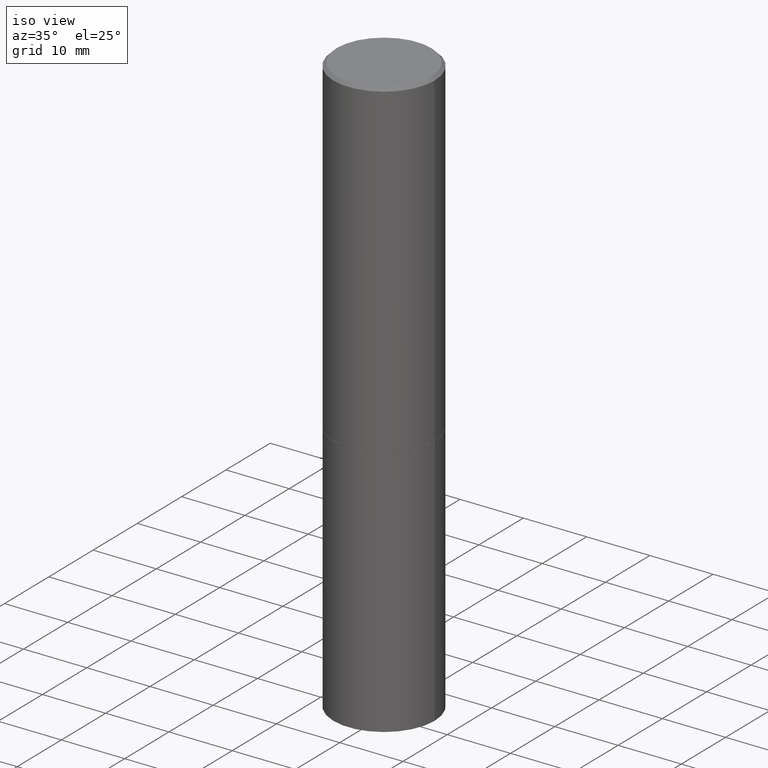
[diagram: clean part render]
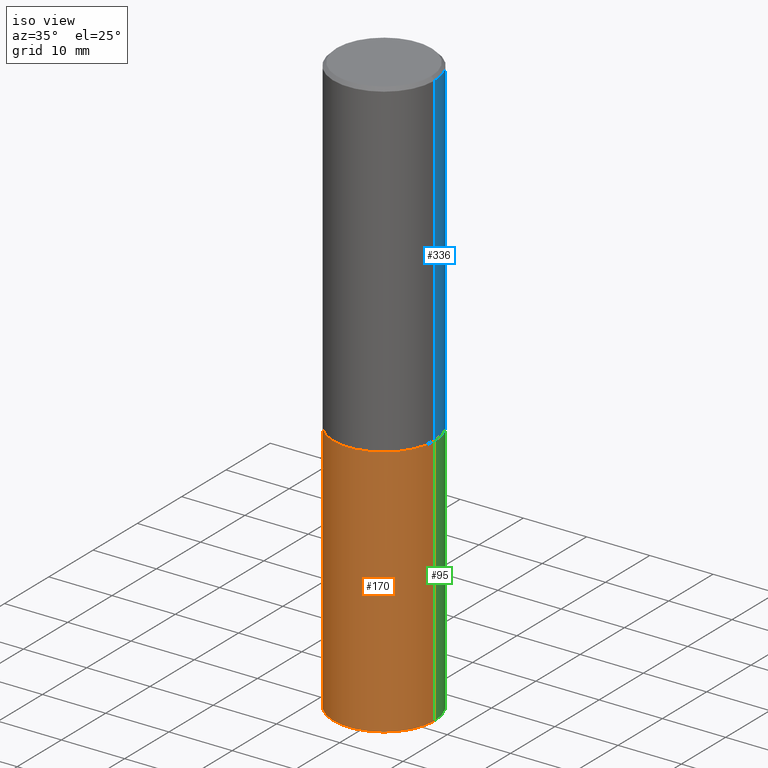
[diagram: same view with three faces highlighted in distinct colors, each labeled with its STEP entity id]
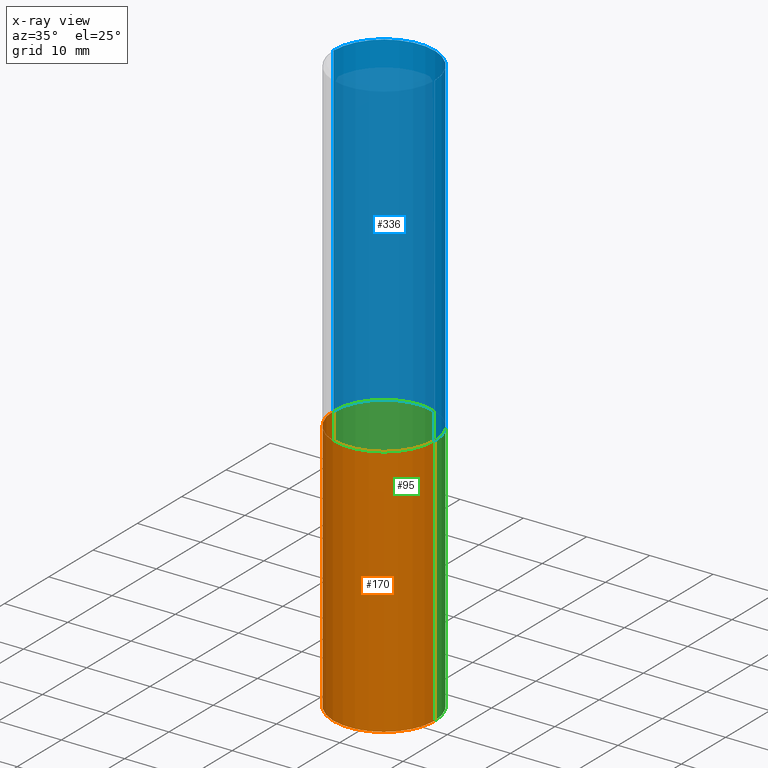
[diagram: x-ray of the same camera — body ghosted, the three highlighted faces saturated]
A machine part, iso view with three faces highlighted in distinct colors.
The next image is the same camera in x-ray (body ghosted, the three faces saturated) — at least one of them is partly hidden behind the body in this view.
Their STEP definitions:

[orange] entity #170 — the highlighted cylindrical surface (partial cylindrical patch) has radius 7.9997 mm, axis along (-0, 0, 1).
#8 = CYLINDRICAL_SURFACE ( 'NONE', #254, 0.3149500000000000077 ) ;
#9 = DIRECTION ( 'NONE',  ( 1.000000000000000000, -6.982962677686266711E-15, 4.876176775795936353E-29 ) ) ;
#17 = CARTESIAN_POINT ( 'NONE',  ( 0.3149500000000000077, -2.199284095337289871E-15, 1.535751875536930130E-29 ) ) ;
#21 = ORIENTED_EDGE ( 'NONE', *, *, #283, .T. ) ;
#24 = VECTOR ( 'NONE', #333, 39.37007874015748143 ) ;
#26 = ORIENTED_EDGE ( 'NONE', *, *, #251, .T. ) ;
#43 = VERTEX_POINT ( 'NONE', #271 ) ;
#55 = CIRCLE ( 'NONE', #203, 0.3149500000000000077 ) ;
#81 = VERTEX_POINT ( 'NONE', #321 ) ;
#96 = CARTESIAN_POINT ( 'NONE',  ( 0.3149500000000000077, -1.484542950462716186E-14, -3.621999999999999886 ) ) ;
#114 = DIRECTION ( 'NONE',  ( -2.445468806185136597E-29, 3.491481338843145583E-15, 1.000000000000000000 ) ) ;
#143 = DIRECTION ( 'NONE',  ( -2.445468806185136597E-29, 3.491481338843145583E-15, 1.000000000000000000 ) ) ;
#147 = VECTOR ( 'NONE', #257, 39.37007874015748143 ) ;
#159 = CIRCLE ( 'NONE', #294, 0.3149500000000000077 ) ;
#163 = CARTESIAN_POINT ( 'NONE',  ( 8.857488016002564476E-29, -1.264614540928987199E-14, -3.621999999999999886 ) ) ;
#170 = ADVANCED_FACE ( 'NONE', ( #241 ), #8, .T. ) ;
#172 = VERTEX_POINT ( 'NONE', #96 ) ;
#181 = EDGE_CURVE ( 'NONE', #43, #311, #214, .T. ) ;
#188 = DIRECTION ( 'NONE',  ( -2.445468806185136597E-29, 3.491481338843145583E-15, 1.000000000000000000 ) ) ;
#201 = EDGE_LOOP ( 'NONE', ( #202, #26, #21, #286 ) ) ;
#202 = ORIENTED_EDGE ( 'NONE', *, *, #181, .F. ) ;
#203 = AXIS2_PLACEMENT_3D ( 'NONE', #318, #114, #288 ) ;
#212 = CARTESIAN_POINT ( 'NONE',  ( 0.000000000000000000, 0.000000000000000000, 0.000000000000000000 ) ) ;
#214 = LINE ( 'NONE', #356, #24 ) ;
#241 = FACE_OUTER_BOUND ( 'NONE', #201, .T. ) ;
#251 = EDGE_CURVE ( 'NONE', #43, #172, #159, .T. ) ;
#252 = LINE ( 'NONE', #17, #147 ) ;
#254 = AXIS2_PLACEMENT_3D ( 'NONE', #212, #188, #9 ) ;
#257 = DIRECTION ( 'NONE',  ( -2.445468806185136877E-29, 3.491481338843145188E-15, 1.000000000000000000 ) ) ;
#271 = CARTESIAN_POINT ( 'NONE',  ( -0.3149500000000000077, -7.659098656808343322E-15, -3.621999999999999886 ) ) ;
#283 = EDGE_CURVE ( 'NONE', #172, #81, #252, .T. ) ;
#286 = ORIENTED_EDGE ( 'NONE', *, *, #344, .F. ) ;
#288 = DIRECTION ( 'NONE',  ( 1.000000000000000000, -6.982962677686269866E-15, 0.000000000000000000 ) ) ;
#294 = AXIS2_PLACEMENT_3D ( 'NONE', #163, #143, #330 ) ;
#311 = VERTEX_POINT ( 'NONE', #358 ) ;
#318 = CARTESIAN_POINT ( 'NONE',  ( 5.006363740022211120E-29, -7.147760596879686624E-15, -2.047199999999999687 ) ) ;
#321 = CARTESIAN_POINT ( 'NONE',  ( 0.3149500000000000077, -9.347044692216978073E-15, -2.047199999999999687 ) ) ;
#330 = DIRECTION ( 'NONE',  ( 1.000000000000000000, -6.982962677686263555E-15, 0.000000000000000000 ) ) ;
#333 = DIRECTION ( 'NONE',  ( -2.445468806185136877E-29, 3.491481338843145188E-15, 1.000000000000000000 ) ) ;
#344 = EDGE_CURVE ( 'NONE', #311, #81, #55, .T. ) ;
#356 = CARTESIAN_POINT ( 'NONE',  ( -0.3149500000000000077, 2.237854346276435590E-15, -1.549218606675782676E-29 ) ) ;
#358 = CARTESIAN_POINT ( 'NONE',  ( -0.3149500000000000077, -7.659098656808343322E-15, -2.047199999999999687 ) ) ;

[blue] entity #336 — the highlighted cylindrical surface (partial cylindrical patch) has radius 7.9997 mm, axis along (-0, 0, 1).
#19 = VERTEX_POINT ( 'NONE', #292 ) ;
#22 = CARTESIAN_POINT ( 'NONE',  ( 0.3149500000000000077, -9.343553210878133488E-15, -2.046199999999999797 ) ) ;
#45 = DIRECTION ( 'NONE',  ( 1.000000000000000000, -6.982962677686266711E-15, 0.000000000000000000 ) ) ;
#54 = ORIENTED_EDGE ( 'NONE', *, *, #298, .F. ) ;
#63 = EDGE_CURVE ( 'NONE', #135, #282, #236, .T. ) ;
#66 = ORIENTED_EDGE ( 'NONE', *, *, #63, .F. ) ;
#68 = DIRECTION ( 'NONE',  ( 1.000000000000000000, -6.982962677686266711E-15, 0.000000000000000000 ) ) ;
#77 = CARTESIAN_POINT ( 'NONE',  ( -0.3149499999999997302, 2.129454468560424601E-15, -0.02000000000000006981 ) ) ;
#98 = DIRECTION ( 'NONE',  ( -2.445468806185136877E-29, 3.491481338843145188E-15, 1.000000000000000000 ) ) ;
#100 = DIRECTION ( 'NONE',  ( -2.445468806185136877E-29, 3.491481338843145188E-15, 1.000000000000000000 ) ) ;
#135 = VERTEX_POINT ( 'NONE', #155 ) ;
#142 = VECTOR ( 'NONE', #98, 39.37007874015748143 ) ;
#153 = AXIS2_PLACEMENT_3D ( 'NONE', #309, #193, #45 ) ;
#155 = CARTESIAN_POINT ( 'NONE',  ( 0.3149499999999997302, -2.230543471175005478E-15, -0.02000000000000006981 ) ) ;
#160 = ORIENTED_EDGE ( 'NONE', *, *, #268, .T. ) ;
#161 = FACE_OUTER_BOUND ( 'NONE', #272, .T. ) ;
#166 = CARTESIAN_POINT ( 'NONE',  ( 0.000000000000000000, 0.000000000000000000, 0.000000000000000000 ) ) ;
#171 = CYLINDRICAL_SURFACE ( 'NONE', #355, 0.3149499999999998967 ) ;
#185 = ORIENTED_EDGE ( 'NONE', *, *, #243, .T. ) ;
#193 = DIRECTION ( 'NONE',  ( -2.445468806185136597E-29, 3.491481338843145583E-15, 1.000000000000000000 ) ) ;
#199 = VERTEX_POINT ( 'NONE', #22 ) ;
#218 = CARTESIAN_POINT ( 'NONE',  ( -0.3149499999999998967, 2.237854346276434801E-15, -1.549218606675782116E-29 ) ) ;
#227 = CARTESIAN_POINT ( 'NONE',  ( 0.3149499999999998967, -2.199284095337288688E-15, 1.535751875536929289E-29 ) ) ;
#236 = CIRCLE ( 'NONE', #263, 0.3149499999999997302 ) ;
#242 = CARTESIAN_POINT ( 'NONE',  ( 4.890937612370289799E-31, -6.982962677686315028E-17, -0.02000000000000006981 ) ) ;
#243 = EDGE_CURVE ( 'NONE', #19, #282, #281, .T. ) ;
#263 = AXIS2_PLACEMENT_3D ( 'NONE', #242, #352, #68 ) ;
#268 = EDGE_CURVE ( 'NONE', #199, #19, #364, .T. ) ;
#272 = EDGE_LOOP ( 'NONE', ( #160, #185, #66, #54 ) ) ;
#273 = DIRECTION ( 'NONE',  ( 1.000000000000000000, -6.982962677686265922E-15, 4.876176775795935232E-29 ) ) ;
#281 = LINE ( 'NONE', #218, #342 ) ;
#282 = VERTEX_POINT ( 'NONE', #77 ) ;
#285 = DIRECTION ( 'NONE',  ( -2.445468806185136597E-29, 3.491481338843145583E-15, 1.000000000000000000 ) ) ;
#292 = CARTESIAN_POINT ( 'NONE',  ( -0.3149500000000000077, -1.369195024882416092E-15, -2.046199999999999797 ) ) ;
#298 = EDGE_CURVE ( 'NONE', #199, #135, #365, .T. ) ;
#309 = CARTESIAN_POINT ( 'NONE',  ( 5.003918271216025517E-29, -7.144269115540843617E-15, -2.046199999999999797 ) ) ;
#336 = ADVANCED_FACE ( 'NONE', ( #161 ), #171, .T. ) ;
#342 = VECTOR ( 'NONE', #100, 39.37007874015748143 ) ;
#352 = DIRECTION ( 'NONE',  ( -2.445468806185136597E-29, 3.491481338843145583E-15, 1.000000000000000000 ) ) ;
#355 = AXIS2_PLACEMENT_3D ( 'NONE', #166, #285, #273 ) ;
#364 = CIRCLE ( 'NONE', #153, 0.3149500000000000077 ) ;
#365 = LINE ( 'NONE', #227, #142 ) ;

[green] entity #95 — the highlighted cylindrical surface (partial cylindrical patch) has radius 7.9997 mm, axis along (-0, 0, 1).
#6 = EDGE_CURVE ( 'NONE', #172, #43, #211, .T. ) ;
#17 = CARTESIAN_POINT ( 'NONE',  ( 0.3149500000000000077, -2.199284095337289871E-15, 1.535751875536930130E-29 ) ) ;
#24 = VECTOR ( 'NONE', #333, 39.37007874015748143 ) ;
#28 = DIRECTION ( 'NONE',  ( -2.445468806185136597E-29, 3.491481338843145583E-15, 1.000000000000000000 ) ) ;
#31 = EDGE_CURVE ( 'NONE', #81, #311, #92, .T. ) ;
#43 = VERTEX_POINT ( 'NONE', #271 ) ;
#74 = EDGE_LOOP ( 'NONE', ( #104, #296, #169, #366 ) ) ;
#81 = VERTEX_POINT ( 'NONE', #321 ) ;
#92 = CIRCLE ( 'NONE', #308, 0.3149500000000000077 ) ;
#93 = AXIS2_PLACEMENT_3D ( 'NONE', #267, #303, #293 ) ;
#95 = ADVANCED_FACE ( 'NONE', ( #327 ), #182, .T. ) ;
#96 = CARTESIAN_POINT ( 'NONE',  ( 0.3149500000000000077, -1.484542950462716186E-14, -3.621999999999999886 ) ) ;
#97 = DIRECTION ( 'NONE',  ( 1.000000000000000000, -6.982962677686269866E-15, 0.000000000000000000 ) ) ;
#104 = ORIENTED_EDGE ( 'NONE', *, *, #6, .T. ) ;
#106 = DIRECTION ( 'NONE',  ( -2.445468806185136597E-29, 3.491481338843145583E-15, 1.000000000000000000 ) ) ;
#147 = VECTOR ( 'NONE', #257, 39.37007874015748143 ) ;
#151 = CARTESIAN_POINT ( 'NONE',  ( 5.006363740022211120E-29, -7.147760596879686624E-15, -2.047199999999999687 ) ) ;
#169 = ORIENTED_EDGE ( 'NONE', *, *, #31, .F. ) ;
#172 = VERTEX_POINT ( 'NONE', #96 ) ;
#181 = EDGE_CURVE ( 'NONE', #43, #311, #214, .T. ) ;
#182 = CYLINDRICAL_SURFACE ( 'NONE', #93, 0.3149500000000000077 ) ;
#211 = CIRCLE ( 'NONE', #239, 0.3149500000000000077 ) ;
#214 = LINE ( 'NONE', #356, #24 ) ;
#230 = DIRECTION ( 'NONE',  ( 1.000000000000000000, -6.982962677686263555E-15, 0.000000000000000000 ) ) ;
#239 = AXIS2_PLACEMENT_3D ( 'NONE', #338, #106, #230 ) ;
#252 = LINE ( 'NONE', #17, #147 ) ;
#257 = DIRECTION ( 'NONE',  ( -2.445468806185136877E-29, 3.491481338843145188E-15, 1.000000000000000000 ) ) ;
#267 = CARTESIAN_POINT ( 'NONE',  ( 0.000000000000000000, 0.000000000000000000, 0.000000000000000000 ) ) ;
#271 = CARTESIAN_POINT ( 'NONE',  ( -0.3149500000000000077, -7.659098656808343322E-15, -3.621999999999999886 ) ) ;
#283 = EDGE_CURVE ( 'NONE', #172, #81, #252, .T. ) ;
#293 = DIRECTION ( 'NONE',  ( 1.000000000000000000, -6.982962677686266711E-15, 4.876176775795936353E-29 ) ) ;
#296 = ORIENTED_EDGE ( 'NONE', *, *, #181, .T. ) ;
#303 = DIRECTION ( 'NONE',  ( -2.445468806185136597E-29, 3.491481338843145583E-15, 1.000000000000000000 ) ) ;
#308 = AXIS2_PLACEMENT_3D ( 'NONE', #151, #28, #97 ) ;
#311 = VERTEX_POINT ( 'NONE', #358 ) ;
#321 = CARTESIAN_POINT ( 'NONE',  ( 0.3149500000000000077, -9.347044692216978073E-15, -2.047199999999999687 ) ) ;
#327 = FACE_OUTER_BOUND ( 'NONE', #74, .T. ) ;
#333 = DIRECTION ( 'NONE',  ( -2.445468806185136877E-29, 3.491481338843145188E-15, 1.000000000000000000 ) ) ;
#338 = CARTESIAN_POINT ( 'NONE',  ( 8.857488016002564476E-29, -1.264614540928987199E-14, -3.621999999999999886 ) ) ;
#356 = CARTESIAN_POINT ( 'NONE',  ( -0.3149500000000000077, 2.237854346276435590E-15, -1.549218606675782676E-29 ) ) ;
#358 = CARTESIAN_POINT ( 'NONE',  ( -0.3149500000000000077, -7.659098656808343322E-15, -2.047199999999999687 ) ) ;
#366 = ORIENTED_EDGE ( 'NONE', *, *, #283, .F. ) ;